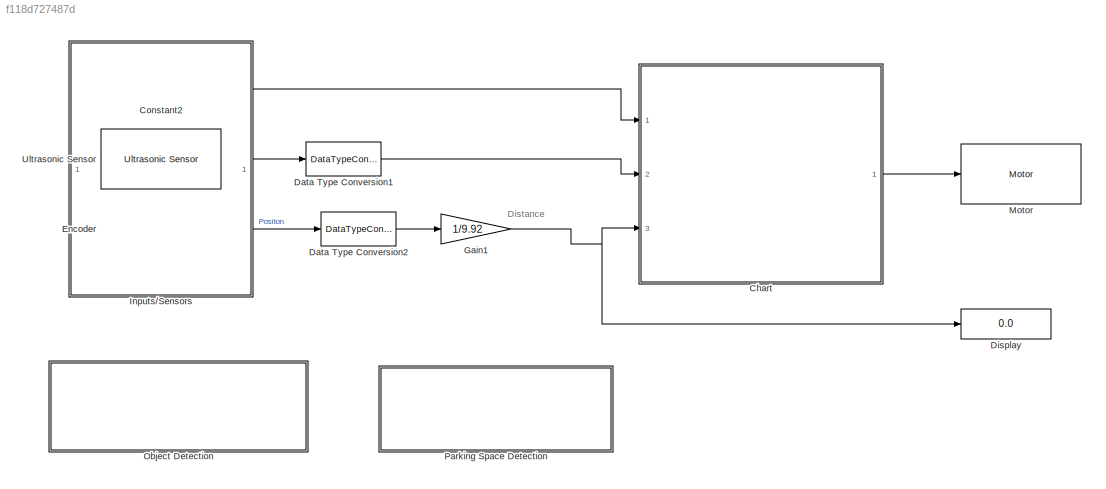
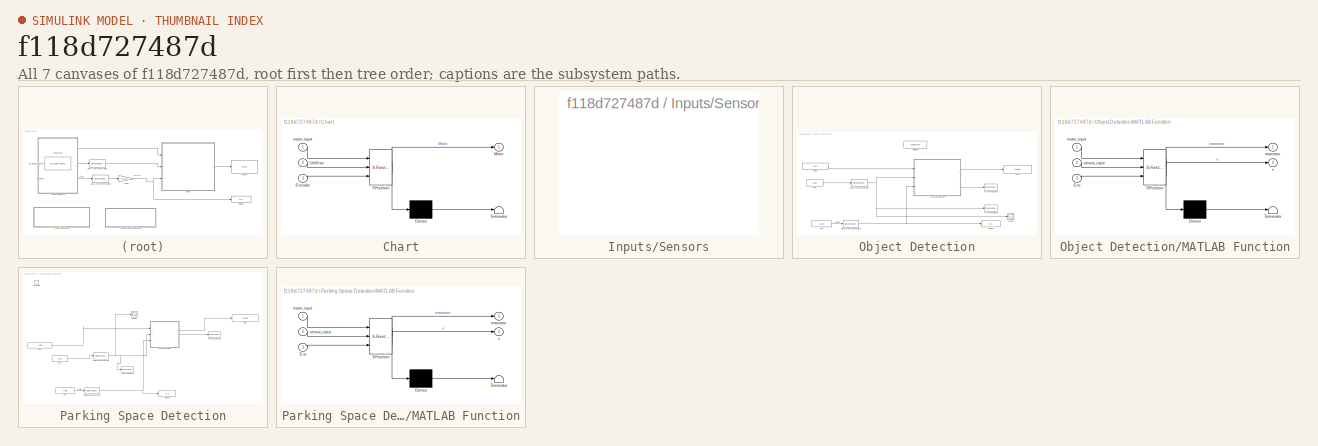
[diagram: thumbnail index - all 7 canvases of the model, root first then tree order]
MODEL slx_f118d727487d
KIND model
CONFIG AbsTol = auto
CONFIG FixedStep = auto
CONFIG MaxStep = auto
CONFIG MinStep = auto
CONFIG RelTol = 1e-3
CONFIG SampleTimeConstraint = Unconstrained
CONFIG Solver = ode45
CONFIG SolverMode = Auto
CONFIG SolverName = ode45
CONFIG StartTime = 0.0
CONFIG StopTime = 10.0
BLOCK [SubSystem] Chart
  ErrorFcn = Stateflow.Translate.translate
  PermitHierarchicalResolution = ExplicitOnly
  Ports = [3, 1]
  RequestExecContextInheritance = off
  SFBlockType = Chart
  TreatAsAtomicUnit = on
BLOCK [Demux] Chart/ Demux 
  Outputs = 1
  Ports = [1, 1]
BLOCK [S-Function] Chart/ SFunction 
  EnableBusSupport = on
  FunctionName = sf_sfun
  PortCounts = [3 2]
  Ports = [3, 2]
  Tag = Stateflow S-Function stateflow4 3
BLOCK [Terminator] Chart/ Terminator 
BLOCK [Inport] Chart/Encoder
  IconDisplay = Port number
  Port = 3
BLOCK [Outport] Chart/Motor
  IconDisplay = Port number
BLOCK [Inport] Chart/UltrSnsr
  IconDisplay = Port number
  Port = 2
BLOCK [Inport] Chart/motor_input
  IconDisplay = Port number
BLOCK [Constant] Constant2
  Value = 30
BLOCK [DataTypeConversion] Data Type Conversion1
  RndMeth = Floor
  SaturateOnIntegerOverflow = off
BLOCK [DataTypeConversion] Data Type Conversion2
  RndMeth = Floor
  SaturateOnIntegerOverflow = off
BLOCK [Display] Display
  Decimation = 1
  Ports = [1]
BLOCK [Reference] Encoder  REF=legoev3lib/Encoder
  Ports = [0, 1]
  SourceBlock = legoev3lib/Encoder
  SourceType = LEGO MINDSTORMS EV3 Encoder
  opMode = No reset
  portNumber = A
  sampleTime = 0.01
BLOCK [Gain] Gain1
  Gain = 1/9.92
  OutDataTypeStr = Inherit: Inherit via internal rule
  ParamDataTypeStr = Inherit: Inherit via internal rule
  SaturateOnIntegerOverflow = off
BLOCK [SubSystem] Inputs//Sensors
  Ports = []
  RequestExecContextInheritance = off
BLOCK [Reference] Motor  REF=legoev3lib/Motor
  Ports = [1]
  SourceBlock = legoev3lib/Motor
  SourceType = LEGO MINDSTORMS EV3 Motor
  sportNumber = A
  sstopAction = Brake
BLOCK [SubSystem] Object Detection
  Ports = [0, 0, 0, 1]
  RequestExecContextInheritance = off
  TreatAsAtomicUnit = on
BLOCK [DataTypeConversion] Object Detection/Data Type Conversion
  RndMeth = Floor
  SaturateOnIntegerOverflow = off
BLOCK [DataTypeConversion] Object Detection/Data Type Conversion1
  RndMeth = Floor
  SaturateOnIntegerOverflow = off
BLOCK [Display] Object Detection/Display
  Decimation = 1
  Ports = [1]
BLOCK [ArgIn] Object Detection/Enc
  ArgumentName = Enc
  DisableCoverage = on
  Port = 3
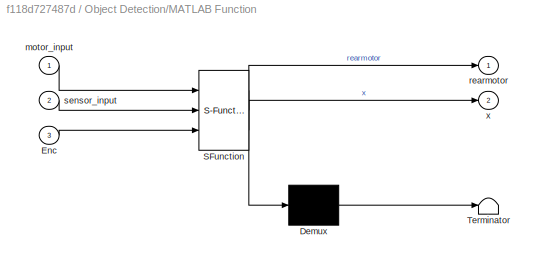
BLOCK [SubSystem] Object Detection/MATLAB Function
  ErrorFcn = Stateflow.Translate.translate
  PermitHierarchicalResolution = ExplicitOnly
  Ports = [3, 2]
  RequestExecContextInheritance = off
  SFBlockType = MATLAB Function
  TreatAsAtomicUnit = on
BLOCK [Demux] Object Detection/MATLAB Function/ Demux 
  Outputs = 1
  Ports = [1, 1]
BLOCK [S-Function] Object Detection/MATLAB Function/ SFunction 
  EnableBusSupport = on
  FunctionName = sf_sfun
  PortCounts = [3 3]
  Ports = [3, 3]
  Tag = Stateflow S-Function stateflow4 2
BLOCK [Terminator] Object Detection/MATLAB Function/ Terminator 
BLOCK [Inport] Object Detection/MATLAB Function/Enc
  IconDisplay = Port number
  Port = 3
BLOCK [Inport] Object Detection/MATLAB Function/motor_input
  IconDisplay = Port number
BLOCK [Outport] Object Detection/MATLAB Function/rearmotor
  IconDisplay = Port number
BLOCK [Inport] Object Detection/MATLAB Function/sensor_input
  IconDisplay = Port number
  Port = 2
BLOCK [Outport] Object Detection/MATLAB Function/x
  IconDisplay = Port number
  Port = 2
BLOCK [ArgOut] Object Detection/Mot
  ArgumentName = Mot
  DisableCoverage = on
BLOCK [TriggerPort] Object Detection/ObjDetn
  FunctionName = ObjDetn
  IsSimulinkFunction = on
  Ports = []
  StatesWhenEnabling = held
  TriggerType = function-call
BLOCK [Scope] Object Detection/Scope
  Floating = off
  NumInputPorts = 1
  Ports = [1]
  YMax = 3.15
  YMin = 2.85
BLOCK [ArgIn] Object Detection/Snsr
  ArgumentName = Snsr
  DisableCoverage = on
  Port = 2
BLOCK [ToWorkspace] Object Detection/To Workspace1
  FixptAsFi = on
  MaxDataPoints = inf
  Ports = [1]
  SampleTime = -1
  Save2DSignal = 3-D array (concatenate along third dimension)
  VariableName = xx
BLOCK [ToWorkspace] Object Detection/To Workspace2
  FixptAsFi = on
  MaxDataPoints = inf
  Ports = [1]
  SampleTime = -1
  Save2DSignal = 3-D array (concatenate along third dimension)
  VariableName = w
BLOCK [ArgIn] Object Detection/input
  ArgumentName = input
  DisableCoverage = on
BLOCK [SubSystem] Parking Space Detection
  Ports = [0, 0, 0, 1]
  RequestExecContextInheritance = off
  TreatAsAtomicUnit = on
BLOCK [DataTypeConversion] Parking Space Detection/Data Type Conversion
  RndMeth = Floor
  SaturateOnIntegerOverflow = off
BLOCK [DataTypeConversion] Parking Space Detection/Data Type Conversion1
  RndMeth = Floor
  SaturateOnIntegerOverflow = off
BLOCK [Display] Parking Space Detection/Display
  Decimation = 1
  Ports = [1]
BLOCK [ArgIn] Parking Space Detection/Enc
  ArgumentName = Enc
  DisableCoverage = on
  Port = 3
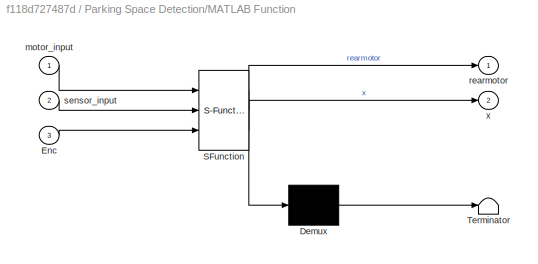
BLOCK [SubSystem] Parking Space Detection/MATLAB Function
  ErrorFcn = Stateflow.Translate.translate
  PermitHierarchicalResolution = ExplicitOnly
  Ports = [3, 2]
  RequestExecContextInheritance = off
  SFBlockType = MATLAB Function
  TreatAsAtomicUnit = on
BLOCK [Demux] Parking Space Detection/MATLAB Function/ Demux 
  Outputs = 1
  Ports = [1, 1]
BLOCK [S-Function] Parking Space Detection/MATLAB Function/ SFunction 
  EnableBusSupport = on
  FunctionName = sf_sfun
  PortCounts = [3 3]
  Ports = [3, 3]
  Tag = Stateflow S-Function stateflow4 1
BLOCK [Terminator] Parking Space Detection/MATLAB Function/ Terminator 
BLOCK [Inport] Parking Space Detection/MATLAB Function/Enc
  IconDisplay = Port number
  Port = 3
BLOCK [Inport] Parking Space Detection/MATLAB Function/motor_input
  IconDisplay = Port number
BLOCK [Outport] Parking Space Detection/MATLAB Function/rearmotor
  IconDisplay = Port number
BLOCK [Inport] Parking Space Detection/MATLAB Function/sensor_input
  IconDisplay = Port number
  Port = 2
BLOCK [Outport] Parking Space Detection/MATLAB Function/x
  IconDisplay = Port number
  Port = 2
BLOCK [ArgOut] Parking Space Detection/Mot
  ArgumentName = Mot
  DisableCoverage = on
BLOCK [TriggerPort] Parking Space Detection/ParkDetn
  FunctionName = ParkDetn
  IsSimulinkFunction = on
  Ports = []
  StatesWhenEnabling = held
  TriggerType = function-call
BLOCK [Scope] Parking Space Detection/Scope
  Floating = off
  NumInputPorts = 1
  Ports = [1]
  SaveName = ScopeData1
  YMax = 3
  YMin = 3
BLOCK [ArgIn] Parking Space Detection/Snsr
  ArgumentName = Snsr
  DisableCoverage = on
  Port = 2
BLOCK [ToWorkspace] Parking Space Detection/To Workspace1
  FixptAsFi = on
  MaxDataPoints = inf
  Ports = [1]
  SampleTime = -1
  Save2DSignal = 3-D array (concatenate along third dimension)
  VariableName = xx1
BLOCK [ToWorkspace] Parking Space Detection/To Workspace2
  FixptAsFi = on
  MaxDataPoints = inf
  Ports = [1]
  SampleTime = -1
  Save2DSignal = 3-D array (concatenate along third dimension)
  VariableName = w1
BLOCK [ArgIn] Parking Space Detection/input
  ArgumentName = input
  DisableCoverage = on
BLOCK [Reference] Ultrasonic Sensor  REF=legoev3lib/Ultrasonic Sensor
  PortNumber = 1
  Ports = [0, 1]
  SourceBlock = legoev3lib/Ultrasonic Sensor
  SourceType = LEGO MINDSTORMS EV3 Ultrasonic Sensor
  sampleTime = 0.01
ANNOTATION (root): Distance
LINE Chart:1 -> Motor:1
LINE Constant2:1 -> Chart:1
LINE Data Type Conversion1:1 -> Chart:2
LINE Data Type Conversion2:1 -> Gain1:1
LINE Encoder:1 -> Data Type Conversion2:1
NET Gain1:1 -> Chart:3, Display:1
NET Object Detection/Data Type Conversion1:1 -> Object Detection/Display:1, Object Detection/MATLAB Function:3
NET Object Detection/Data Type Conversion:1 -> Object Detection/MATLAB Function:2, Object Detection/Scope:1, Object Detection/To Workspace2:1
LINE Object Detection/Enc:1 -> Object Detection/Data Type Conversion1:1
LINE Object Detection/MATLAB Function:1 -> Object Detection/Mot:1
LINE Object Detection/MATLAB Function:2 -> Object Detection/To Workspace1:1
LINE Object Detection/Snsr:1 -> Object Detection/Data Type Conversion:1
LINE Object Detection/input:1 -> Object Detection/MATLAB Function:1
NET Parking Space Detection/Data Type Conversion1:1 -> Parking Space Detection/Display:1, Parking Space Detection/MATLAB Function:3
NET Parking Space Detection/Data Type Conversion:1 -> Parking Space Detection/MATLAB Function:2, Parking Space Detection/Scope:1, Parking Space Detection/To Workspace2:1
LINE Parking Space Detection/Enc:1 -> Parking Space Detection/Data Type Conversion1:1
LINE Parking Space Detection/MATLAB Function:1 -> Parking Space Detection/Mot:1
LINE Parking Space Detection/MATLAB Function:2 -> Parking Space Detection/To Workspace1:1
LINE Parking Space Detection/Snsr:1 -> Parking Space Detection/Data Type Conversion:1
LINE Parking Space Detection/input:1 -> Parking Space Detection/MATLAB Function:1
LINE Ultrasonic Sensor:1 -> Data Type Conversion1:1
note: NET lines group one-source signal fan-out (src -> all destinations, sorted); 1:1 wires keep LINE
CHART Parking Space Detection/MATLAB Function states=1 transitions=1
  STATE_LABEL 'eML_blk_kernel()'
  STATE_LABEL 'SCRIPT:\nfunction [rearmotor,x]= fcn(motor_input,sensor_input,Enc)\n%#codegen\n%d = z\n%u = 0; %Encoder reset\nx = Enc;\nlength2=0;\n%reset11=0;\n%state3=0;\nif(sensor_input>24)&&(sensor_input<=60)\n    rearmotor=motor_input-20;\n    if (Enc>=73)&&(Enc<=74)\n        length2=Enc;\n        rearmotor=0;\n%        reset11=1;\n    %    state3=1;        \n    end\n    %elseif(sensor_input>20)&&(sensor_input<=35)\n %   re...<+298ch>'
CHART Object Detection/MATLAB Function states=1 transitions=1
  STATE_LABEL 'eML_blk_kernel()'
  STATE_LABEL 'SCRIPT:\nfunction [rearmotor,x]= fcn(motor_input,sensor_input,Enc)\n%#codegen\n%d = z\n%u = 0; %Encoder reset\nx = Enc;\nlenght2=0;\n%reset1=0;\n%state2=0;\nif(sensor_input>4)&&(sensor_input<=20)\n    rearmotor=motor_input;\n    if (Enc>=30)&&(Enc<=31)\n        length1=30;\n        rearmotor=0;\n%        reset1=1;\n     %   state2=1;        \n    end\n    %elseif(sensor_input>20)&&(sensor_input<=35)\n %   rearmotor...<+281ch>'
CHART Chart states=0 transitions=2
